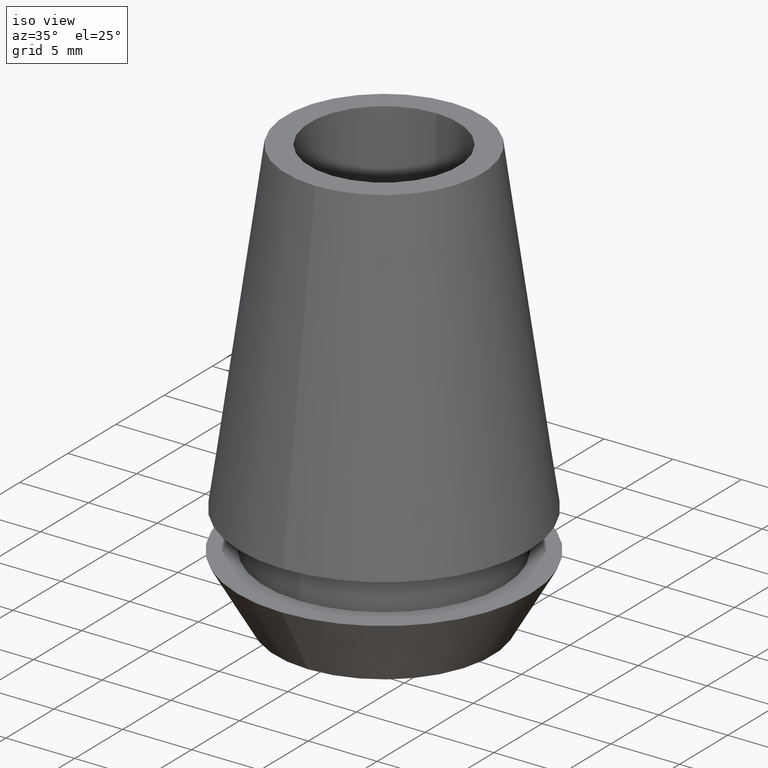
[diagram: clean part render]
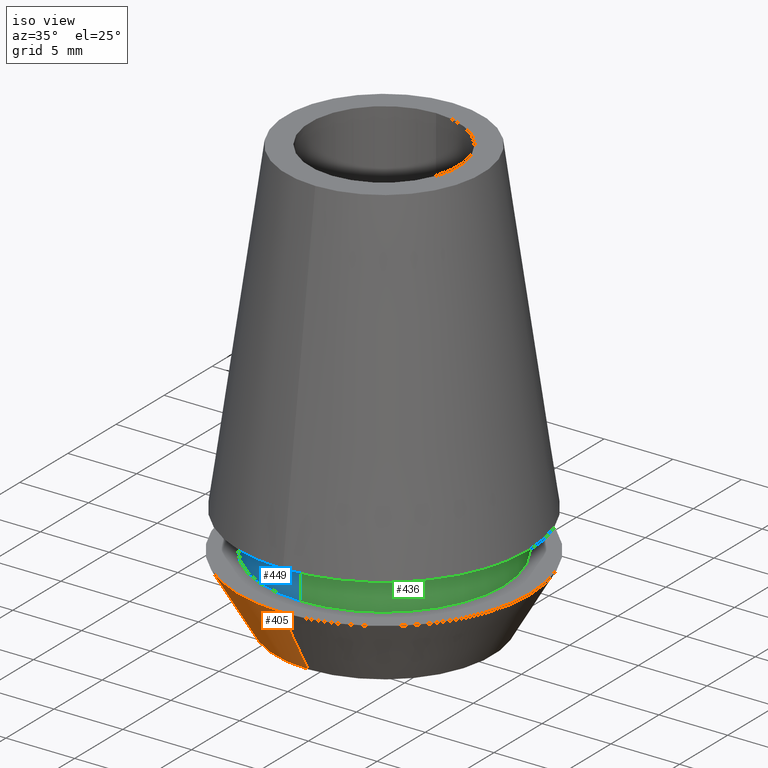
[diagram: same view with three faces highlighted in distinct colors, each labeled with its STEP entity id]
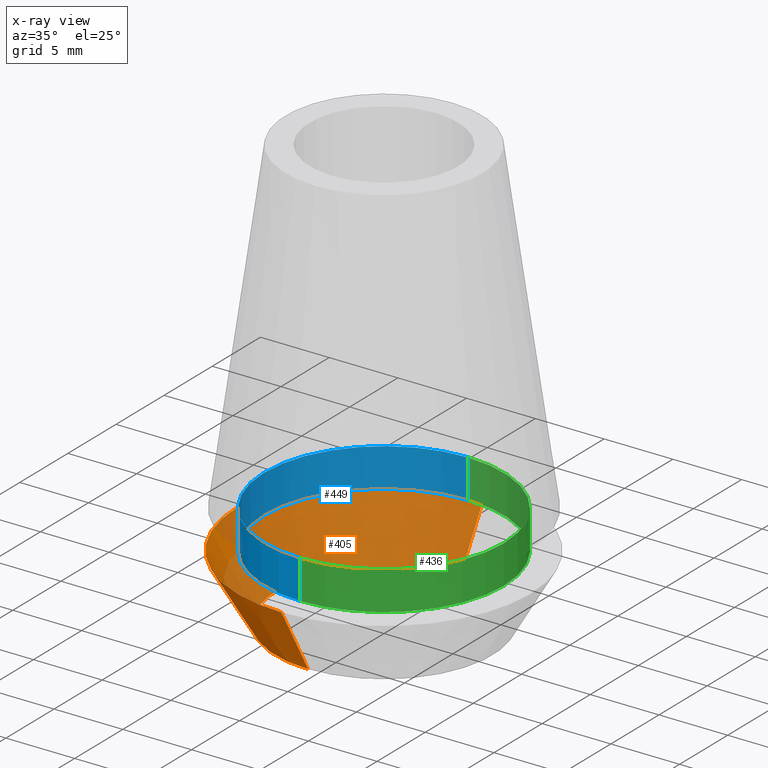
[diagram: x-ray of the same camera — body ghosted, the three highlighted faces saturated]
A machine part, iso view with three faces highlighted in distinct colors.
The next image is the same camera in x-ray (body ghosted, the three faces saturated) — at least one of them is partly hidden behind the body in this view.
Their STEP definitions:

[orange] entity #405 — the highlighted conical surface has half-angle 30 deg.
#86=CARTESIAN_POINT('',(0.E0,1.117367739542E-14,-3.15E1));
#87=DIRECTION('',(0.E0,0.E0,1.E0));
#88=DIRECTION('',(0.E0,1.E0,0.E0));
#89=AXIS2_PLACEMENT_3D('',#86,#87,#88);
#110=DIRECTION('',(0.E0,-5.E-1,-8.660254037844E-1));
#111=VECTOR('',#110,5.542562584220E0);
#112=CARTESIAN_POINT('',(0.E0,1.065E1,-2.67E1));
#113=LINE('',#112,#111);
#117=DIRECTION('',(0.E0,5.E-1,-8.660254037844E-1));
#118=VECTOR('',#117,5.542562584220E0);
#119=CARTESIAN_POINT('',(0.E0,-1.065E1,-2.67E1));
#120=LINE('',#119,#118);
#124=CARTESIAN_POINT('',(0.E0,1.117367739542E-14,-2.67E1));
#125=DIRECTION('',(0.E0,0.E0,-1.E0));
#126=DIRECTION('',(0.E0,-1.E0,0.E0));
#127=AXIS2_PLACEMENT_3D('',#124,#125,#126);
#264=CARTESIAN_POINT('',(0.E0,-7.878718707890E0,-3.15E1));
#265=CARTESIAN_POINT('',(0.E0,7.878718707890E0,-3.15E1));
#266=VERTEX_POINT('',#264);
#267=VERTEX_POINT('',#265);
#268=CARTESIAN_POINT('',(0.E0,1.065E1,-2.67E1));
#269=VERTEX_POINT('',#268);
#270=CARTESIAN_POINT('',(0.E0,-1.065E1,-2.67E1));
#271=VERTEX_POINT('',#270);
#393=CARTESIAN_POINT('',(0.E0,1.117367739542E-14,-2.91E1));
#394=DIRECTION('',(0.E0,0.E0,1.E0));
#395=DIRECTION('',(0.E0,1.E0,0.E0));
#396=AXIS2_PLACEMENT_3D('',#393,#394,#395);
#397=CONICAL_SURFACE('',#396,9.264359353945E0,3.E1);
#398=ORIENTED_EDGE('',*,*,#383,.F.);
#400=ORIENTED_EDGE('',*,*,#399,.F.);
#401=ORIENTED_EDGE('',*,*,#386,.T.);
#402=ORIENTED_EDGE('',*,*,#369,.F.);
#403=EDGE_LOOP('',(#398,#400,#401,#402));
#404=FACE_OUTER_BOUND('',#403,.F.);
#90=CIRCLE('',#89,7.878718707890E0);
#128=CIRCLE('',#127,1.065E1);
#369=EDGE_CURVE('',#267,#266,#90,.T.);
#383=EDGE_CURVE('',#269,#267,#113,.T.);
#386=EDGE_CURVE('',#271,#266,#120,.T.);
#399=EDGE_CURVE('',#271,#269,#128,.T.);
#405=ADVANCED_FACE('',(#404),#397,.T.);

[blue] entity #449 — the highlighted cylindrical surface (partial cylindrical patch) has radius 8.7 mm, axis along (0, 0, -1).
#148=CARTESIAN_POINT('',(0.E0,1.493028145180E-14,-2.67E1));
#149=DIRECTION('',(0.E0,0.E0,1.E0));
#150=DIRECTION('',(0.E0,1.E0,0.E0));
#151=AXIS2_PLACEMENT_3D('',#148,#149,#150);
#156=DIRECTION('',(0.E0,0.E0,-1.E0));
#157=VECTOR('',#156,2.8E0);
#158=CARTESIAN_POINT('',(0.E0,8.7E0,-2.39E1));
#159=LINE('',#158,#157);
#163=DIRECTION('',(0.E0,0.E0,-1.E0));
#164=VECTOR('',#163,2.8E0);
#165=CARTESIAN_POINT('',(0.E0,-8.7E0,-2.39E1));
#166=LINE('',#165,#164);
#186=CARTESIAN_POINT('',(0.E0,1.493028145180E-14,-2.39E1));
#187=DIRECTION('',(0.E0,0.E0,-1.E0));
#188=DIRECTION('',(0.E0,-1.E0,0.E0));
#189=AXIS2_PLACEMENT_3D('',#186,#187,#188);
#272=CARTESIAN_POINT('',(0.E0,-8.7E0,-2.67E1));
#273=CARTESIAN_POINT('',(0.E0,8.7E0,-2.67E1));
#274=VERTEX_POINT('',#272);
#275=VERTEX_POINT('',#273);
#276=CARTESIAN_POINT('',(0.E0,8.7E0,-2.39E1));
#277=VERTEX_POINT('',#276);
#278=CARTESIAN_POINT('',(0.E0,-8.7E0,-2.39E1));
#279=VERTEX_POINT('',#278);
#437=CARTESIAN_POINT('',(0.E0,1.493028145180E-14,1.575E0));
#438=DIRECTION('',(0.E0,0.E0,-1.E0));
#439=DIRECTION('',(0.E0,-1.E0,0.E0));
#440=AXIS2_PLACEMENT_3D('',#437,#438,#439);
#441=CYLINDRICAL_SURFACE('',#440,8.7E0);
#442=ORIENTED_EDGE('',*,*,#427,.F.);
#444=ORIENTED_EDGE('',*,*,#443,.F.);
#445=ORIENTED_EDGE('',*,*,#430,.T.);
#446=ORIENTED_EDGE('',*,*,#417,.F.);
#447=EDGE_LOOP('',(#442,#444,#445,#446));
#448=FACE_OUTER_BOUND('',#447,.F.);
#152=CIRCLE('',#151,8.7E0);
#190=CIRCLE('',#189,8.7E0);
#417=EDGE_CURVE('',#275,#274,#152,.T.);
#427=EDGE_CURVE('',#277,#275,#159,.T.);
#430=EDGE_CURVE('',#279,#274,#166,.T.);
#443=EDGE_CURVE('',#279,#277,#190,.T.);
#449=ADVANCED_FACE('',(#448),#441,.T.);

[green] entity #436 — the highlighted cylindrical surface (partial cylindrical patch) has radius 8.7 mm, axis along (0, 0, -1).
#140=CARTESIAN_POINT('',(0.E0,1.493028145180E-14,-2.67E1));
#141=DIRECTION('',(0.E0,0.E0,1.E0));
#142=DIRECTION('',(0.E0,-1.E0,0.E0));
#143=AXIS2_PLACEMENT_3D('',#140,#141,#142);
#156=DIRECTION('',(0.E0,0.E0,-1.E0));
#157=VECTOR('',#156,2.8E0);
#158=CARTESIAN_POINT('',(0.E0,8.7E0,-2.39E1));
#159=LINE('',#158,#157);
#163=DIRECTION('',(0.E0,0.E0,-1.E0));
#164=VECTOR('',#163,2.8E0);
#165=CARTESIAN_POINT('',(0.E0,-8.7E0,-2.39E1));
#166=LINE('',#165,#164);
#194=CARTESIAN_POINT('',(0.E0,1.493028145180E-14,-2.39E1));
#195=DIRECTION('',(0.E0,0.E0,-1.E0));
#196=DIRECTION('',(0.E0,1.E0,0.E0));
#197=AXIS2_PLACEMENT_3D('',#194,#195,#196);
#272=CARTESIAN_POINT('',(0.E0,-8.7E0,-2.67E1));
#273=CARTESIAN_POINT('',(0.E0,8.7E0,-2.67E1));
#274=VERTEX_POINT('',#272);
#275=VERTEX_POINT('',#273);
#276=CARTESIAN_POINT('',(0.E0,8.7E0,-2.39E1));
#277=VERTEX_POINT('',#276);
#278=CARTESIAN_POINT('',(0.E0,-8.7E0,-2.39E1));
#279=VERTEX_POINT('',#278);
#422=CARTESIAN_POINT('',(0.E0,1.493028145180E-14,1.575E0));
#423=DIRECTION('',(0.E0,0.E0,-1.E0));
#424=DIRECTION('',(0.E0,-1.E0,0.E0));
#425=AXIS2_PLACEMENT_3D('',#422,#423,#424);
#426=CYLINDRICAL_SURFACE('',#425,8.7E0);
#428=ORIENTED_EDGE('',*,*,#427,.T.);
#429=ORIENTED_EDGE('',*,*,#415,.F.);
#431=ORIENTED_EDGE('',*,*,#430,.F.);
#433=ORIENTED_EDGE('',*,*,#432,.F.);
#434=EDGE_LOOP('',(#428,#429,#431,#433));
#435=FACE_OUTER_BOUND('',#434,.F.);
#144=CIRCLE('',#143,8.7E0);
#198=CIRCLE('',#197,8.7E0);
#415=EDGE_CURVE('',#274,#275,#144,.T.);
#427=EDGE_CURVE('',#277,#275,#159,.T.);
#430=EDGE_CURVE('',#279,#274,#166,.T.);
#432=EDGE_CURVE('',#277,#279,#198,.T.);
#436=ADVANCED_FACE('',(#435),#426,.T.);